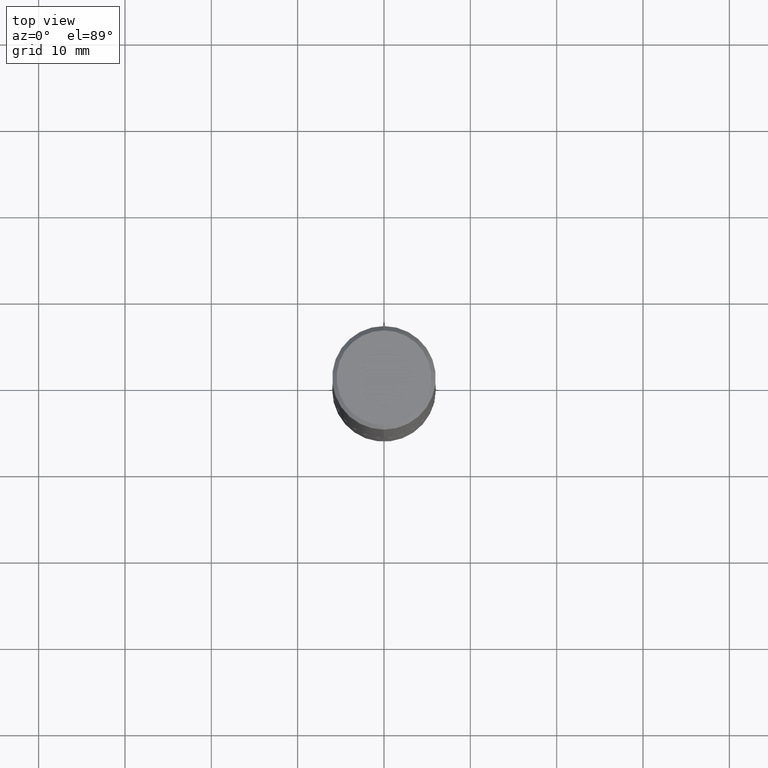
[diagram: clean part render]
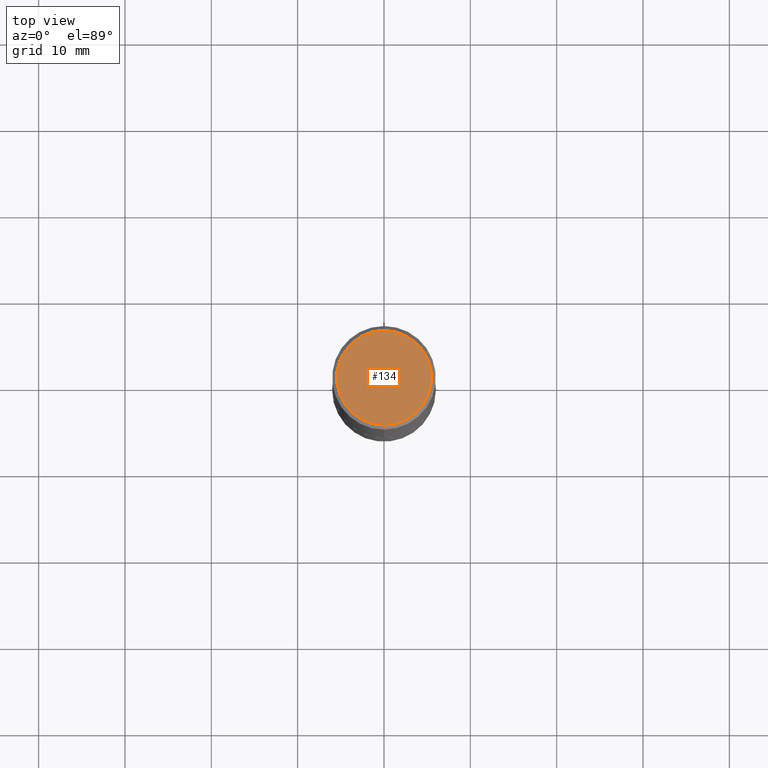
[diagram: same view with one face highlighted and labeled with its STEP entity id]
A machine part, top view. The second image highlights one B-rep face of the part: STEP entity #134.
In plain terms, the highlighted planar face has unit normal (0, -0, -1).
Its self-contained STEP definition (entity closure, byte-faithful):
#3 = EDGE_CURVE ( 'NONE', #266, #196, #102, .T. ) ;
#10 = CARTESIAN_POINT ( 'NONE',  ( 7.178715118017931868E-45, -1.026837905226585320E-30, -2.938244667971532280E-16 ) ) ;
#17 = AXIS2_PLACEMENT_3D ( 'NONE', #10, #393, #143 ) ;
#25 = DIRECTION ( 'NONE',  ( 2.443198551934710321E-29, -3.494732472144603016E-15, -1.000000000000000000 ) ) ;
#27 = CARTESIAN_POINT ( 'NONE',  ( -1.551844647095920733E-15, -0.2162000000000002808, 4.617366936805109079E-16 ) ) ;
#33 = CIRCLE ( 'NONE', #205, 0.2162000000000002808 ) ;
#102 = CIRCLE ( 'NONE', #17, 0.2162000000000002808 ) ;
#110 = EDGE_LOOP ( 'NONE', ( #396, #344 ) ) ;
#127 = PLANE ( 'NONE',  #312 ) ;
#132 = EDGE_CURVE ( 'NONE', #196, #266, #33, .T. ) ;
#134 = ADVANCED_FACE ( 'NONE', ( #350 ), #127, .F. ) ;
#143 = DIRECTION ( 'NONE',  ( -6.982962677686265922E-15, -1.000000000000000000, 3.494732472144603410E-15 ) ) ;
#171 = CARTESIAN_POINT ( 'NONE',  ( 1.579546157692634608E-15, 0.2162000000000002808, -1.049385627274817561E-15 ) ) ;
#196 = VERTEX_POINT ( 'NONE', #171 ) ;
#205 = AXIS2_PLACEMENT_3D ( 'NONE', #406, #251, #353 ) ;
#221 = DIRECTION ( 'NONE',  ( 6.982962677686265922E-15, 1.000000000000000000, -3.494732472144603016E-15 ) ) ;
#251 = DIRECTION ( 'NONE',  ( -2.443198551934710321E-29, 3.494732472144603410E-15, 1.000000000000000000 ) ) ;
#266 = VERTEX_POINT ( 'NONE', #27 ) ;
#312 = AXIS2_PLACEMENT_3D ( 'NONE', #322, #25, #221 ) ;
#322 = CARTESIAN_POINT ( 'NONE',  ( 1.509716530915772690E-15, 0.2162000000000002808, -9.024733938762408486E-16 ) ) ;
#344 = ORIENTED_EDGE ( 'NONE', *, *, #3, .T. ) ;
#350 = FACE_OUTER_BOUND ( 'NONE', #110, .T. ) ;
#353 = DIRECTION ( 'NONE',  ( -6.982962677686265922E-15, -1.000000000000000000, 3.494732472144603410E-15 ) ) ;
#393 = DIRECTION ( 'NONE',  ( -2.443198551934710321E-29, 3.494732472144603410E-15, 1.000000000000000000 ) ) ;
#396 = ORIENTED_EDGE ( 'NONE', *, *, #132, .T. ) ;
#406 = CARTESIAN_POINT ( 'NONE',  ( 7.178715118017931868E-45, -1.026837905226585320E-30, -2.938244667971532280E-16 ) ) ;